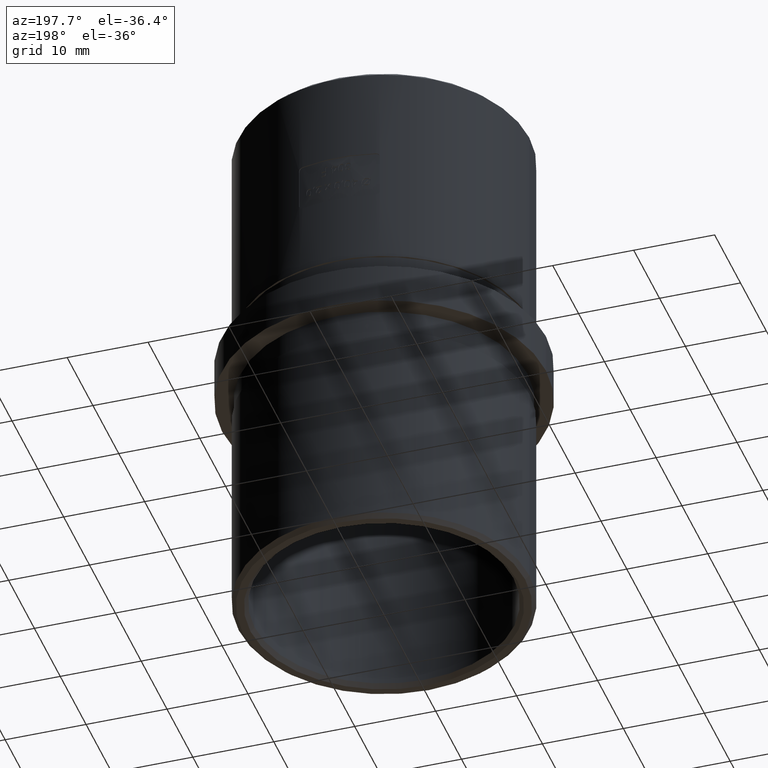
[diagram: clean part render]
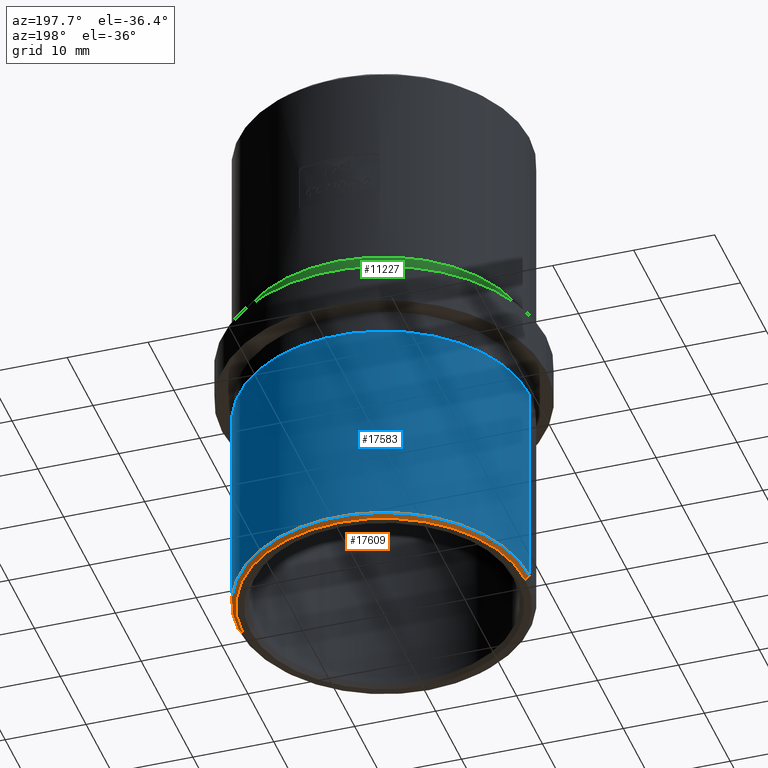
[diagram: same view with three faces highlighted in distinct colors, each labeled with its STEP entity id]
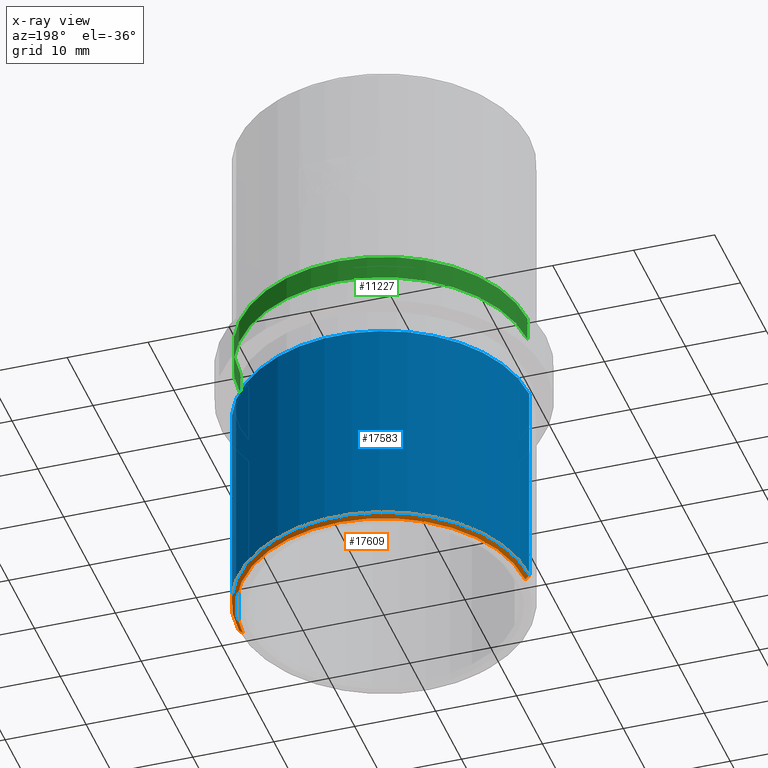
[diagram: x-ray of the same camera — body ghosted, the three highlighted faces saturated]
A machine part, auxiliary view with three faces highlighted in distinct colors.
The next image is the same camera in x-ray (body ghosted, the three faces saturated) — at least one of them is partly hidden behind the body in this view.
Their STEP definitions:

[orange] entity #17609 — the highlighted conical surface has half-angle 45 deg.
#169 = LINE ( 'NONE', #6822, #20080 ) ;
#220 = DIRECTION ( 'NONE',  ( 0.7071067811865426900, 0.0000000000000000000, 0.7071067811865524600 ) ) ;
#253 = CARTESIAN_POINT ( 'NONE',  ( 0.0000000000000000000, 0.0000000000000000000, -32.50000000000000000 ) ) ;
#1071 = VERTEX_POINT ( 'NONE', #15803 ) ;
#1219 = VERTEX_POINT ( 'NONE', #16545 ) ;
#1331 = CARTESIAN_POINT ( 'NONE',  ( 0.0000000000000000000, 0.0000000000000000000, -32.00000000000000000 ) ) ;
#1691 = ORIENTED_EDGE ( 'NONE', *, *, #21748, .F. ) ;
#4025 = VERTEX_POINT ( 'NONE', #6066 ) ;
#4634 = ORIENTED_EDGE ( 'NONE', *, *, #16833, .F. ) ;
#4849 = AXIS2_PLACEMENT_3D ( 'NONE', #6576, #6646, #15262 ) ;
#5349 = CONICAL_SURFACE ( 'NONE', #20091, 17.94999999999999900, 0.7853981633974415100 ) ;
#6066 = CARTESIAN_POINT ( 'NONE',  ( -17.45000000000000600, 2.167624834490815800E-015, -32.50000000000000000 ) ) ;
#6416 = EDGE_CURVE ( 'NONE', #4025, #10700, #169, .T. ) ;
#6576 = CARTESIAN_POINT ( 'NONE',  ( 0.0000000000000000000, 0.0000000000000000000, -32.00000000000000000 ) ) ;
#6646 = DIRECTION ( 'NONE',  ( -0.0000000000000000000, -0.0000000000000000000, 1.000000000000000000 ) ) ;
#6822 = CARTESIAN_POINT ( 'NONE',  ( -17.94999999999999900, 2.198241004469499100E-015, -32.00000000000000000 ) ) ;
#6875 = ORIENTED_EDGE ( 'NONE', *, *, #6416, .T. ) ;
#7486 = CIRCLE ( 'NONE', #4849, 17.94999999999999900 ) ;
#7546 = VECTOR ( 'NONE', #220, 1000.000000000000000 ) ;
#9858 = DIRECTION ( 'NONE',  ( -0.0000000000000000000, -0.0000000000000000000, 1.000000000000000000 ) ) ;
#10243 = DIRECTION ( 'NONE',  ( -0.7071067811865426900, 8.659560562354874900E-017, 0.7071067811865524600 ) ) ;
#10632 = DIRECTION ( 'NONE',  ( 0.0000000000000000000, 0.0000000000000000000, -1.000000000000000000 ) ) ;
#10700 = VERTEX_POINT ( 'NONE', #14364 ) ;
#13742 = CARTESIAN_POINT ( 'NONE',  ( 17.94999999999999900, 0.0000000000000000000, -32.00000000000000000 ) ) ;
#13882 = FACE_OUTER_BOUND ( 'NONE', #17209, .T. ) ;
#14364 = CARTESIAN_POINT ( 'NONE',  ( -17.94999999999999900, 0.0000000000000000000, -32.00000000000000000 ) ) ;
#15262 = DIRECTION ( 'NONE',  ( -1.000000000000000000, 0.0000000000000000000, 0.0000000000000000000 ) ) ;
#15680 = DIRECTION ( 'NONE',  ( -1.000000000000000000, 0.0000000000000000000, 0.0000000000000000000 ) ) ;
#15803 = CARTESIAN_POINT ( 'NONE',  ( 17.45000000000000600, 0.0000000000000000000, -32.50000000000000000 ) ) ;
#16197 = CIRCLE ( 'NONE', #21031, 17.45000000000000600 ) ;
#16545 = CARTESIAN_POINT ( 'NONE',  ( 17.94999999999999900, -2.198241004469499100E-015, -32.00000000000000000 ) ) ;
#16549 = DIRECTION ( 'NONE',  ( 1.000000000000000000, 0.0000000000000000000, 0.0000000000000000000 ) ) ;
#16833 = EDGE_CURVE ( 'NONE', #1071, #1219, #17155, .T. ) ;
#17084 = EDGE_CURVE ( 'NONE', #1219, #10700, #7486, .T. ) ;
#17155 = LINE ( 'NONE', #13742, #7546 ) ;
#17209 = EDGE_LOOP ( 'NONE', ( #1691, #6875, #21893, #4634 ) ) ;
#17609 = ADVANCED_FACE ( 'NONE', ( #13882 ), #5349, .T. ) ;
#20080 = VECTOR ( 'NONE', #10243, 1000.000000000000000 ) ;
#20091 = AXIS2_PLACEMENT_3D ( 'NONE', #1331, #9858, #16549 ) ;
#21031 = AXIS2_PLACEMENT_3D ( 'NONE', #253, #10632, #15680 ) ;
#21748 = EDGE_CURVE ( 'NONE', #4025, #1071, #16197, .T. ) ;
#21893 = ORIENTED_EDGE ( 'NONE', *, *, #17084, .F. ) ;

[blue] entity #17583 — the highlighted cylindrical surface (partial cylindrical patch) has radius 17.95 mm, axis along (-0, -0, 1).
#804 = CARTESIAN_POINT ( 'NONE',  ( 17.94999999999999900, -2.198241004469499100E-015, -5.500000000000000000 ) ) ;
#1096 = VERTEX_POINT ( 'NONE', #804 ) ;
#1219 = VERTEX_POINT ( 'NONE', #16545 ) ;
#1771 = CARTESIAN_POINT ( 'NONE',  ( -17.94999999999999900, 0.0000000000000000000, -32.50000000000000000 ) ) ;
#3154 = DIRECTION ( 'NONE',  ( -0.0000000000000000000, -0.0000000000000000000, 1.000000000000000000 ) ) ;
#4415 = CARTESIAN_POINT ( 'NONE',  ( 0.0000000000000000000, 0.0000000000000000000, -32.50000000000000000 ) ) ;
#4849 = AXIS2_PLACEMENT_3D ( 'NONE', #6576, #6646, #15262 ) ;
#5102 = DIRECTION ( 'NONE',  ( -0.0000000000000000000, -0.0000000000000000000, 1.000000000000000000 ) ) ;
#5694 = AXIS2_PLACEMENT_3D ( 'NONE', #4415, #12902, #16316 ) ;
#6092 = ORIENTED_EDGE ( 'NONE', *, *, #8030, .F. ) ;
#6576 = CARTESIAN_POINT ( 'NONE',  ( 0.0000000000000000000, 0.0000000000000000000, -32.00000000000000000 ) ) ;
#6646 = DIRECTION ( 'NONE',  ( -0.0000000000000000000, -0.0000000000000000000, 1.000000000000000000 ) ) ;
#7167 = AXIS2_PLACEMENT_3D ( 'NONE', #19016, #10697, #7282 ) ;
#7282 = DIRECTION ( 'NONE',  ( 1.000000000000000000, 0.0000000000000000000, 0.0000000000000000000 ) ) ;
#7486 = CIRCLE ( 'NONE', #4849, 17.94999999999999900 ) ;
#8030 = EDGE_CURVE ( 'NONE', #1096, #8881, #19220, .T. ) ;
#8881 = VERTEX_POINT ( 'NONE', #16162 ) ;
#10396 = EDGE_CURVE ( 'NONE', #1219, #1096, #14387, .T. ) ;
#10697 = DIRECTION ( 'NONE',  ( -0.0000000000000000000, -0.0000000000000000000, 1.000000000000000000 ) ) ;
#10700 = VERTEX_POINT ( 'NONE', #14364 ) ;
#10842 = EDGE_CURVE ( 'NONE', #10700, #8881, #14505, .T. ) ;
#11797 = ORIENTED_EDGE ( 'NONE', *, *, #10842, .T. ) ;
#12100 = CARTESIAN_POINT ( 'NONE',  ( 17.94999999999999900, -2.198241004469499100E-015, -32.50000000000000000 ) ) ;
#12272 = ORIENTED_EDGE ( 'NONE', *, *, #17084, .T. ) ;
#12273 = CYLINDRICAL_SURFACE ( 'NONE', #5694, 17.94999999999999900 ) ;
#12296 = FACE_OUTER_BOUND ( 'NONE', #18516, .T. ) ;
#12902 = DIRECTION ( 'NONE',  ( -0.0000000000000000000, -0.0000000000000000000, 1.000000000000000000 ) ) ;
#13198 = VECTOR ( 'NONE', #3154, 1000.000000000000000 ) ;
#14364 = CARTESIAN_POINT ( 'NONE',  ( -17.94999999999999900, 0.0000000000000000000, -32.00000000000000000 ) ) ;
#14387 = LINE ( 'NONE', #12100, #21067 ) ;
#14505 = LINE ( 'NONE', #1771, #13198 ) ;
#15262 = DIRECTION ( 'NONE',  ( -1.000000000000000000, 0.0000000000000000000, 0.0000000000000000000 ) ) ;
#16162 = CARTESIAN_POINT ( 'NONE',  ( -17.94999999999999900, 0.0000000000000000000, -5.500000000000000000 ) ) ;
#16316 = DIRECTION ( 'NONE',  ( -1.000000000000000000, 0.0000000000000000000, 0.0000000000000000000 ) ) ;
#16545 = CARTESIAN_POINT ( 'NONE',  ( 17.94999999999999900, -2.198241004469499100E-015, -32.00000000000000000 ) ) ;
#17084 = EDGE_CURVE ( 'NONE', #1219, #10700, #7486, .T. ) ;
#17583 = ADVANCED_FACE ( 'NONE', ( #12296 ), #12273, .T. ) ;
#18516 = EDGE_LOOP ( 'NONE', ( #18878, #12272, #11797, #6092 ) ) ;
#18878 = ORIENTED_EDGE ( 'NONE', *, *, #10396, .F. ) ;
#19016 = CARTESIAN_POINT ( 'NONE',  ( 0.0000000000000000000, 0.0000000000000000000, -5.500000000000000000 ) ) ;
#19220 = CIRCLE ( 'NONE', #7167, 17.94999999999999900 ) ;
#21067 = VECTOR ( 'NONE', #5102, 1000.000000000000000 ) ;

[green] entity #11227 — the highlighted cylindrical surface (partial cylindrical patch) has radius 17.75 mm, axis along (-0, -0, -1).
#394 = EDGE_CURVE ( 'NONE', #3828, #10120, #9189, .T. ) ;
#713 = FACE_OUTER_BOUND ( 'NONE', #10623, .T. ) ;
#1465 = CIRCLE ( 'NONE', #18503, 17.75000000000000400 ) ;
#1919 = AXIS2_PLACEMENT_3D ( 'NONE', #20712, #6803, #8731 ) ;
#2265 = CARTESIAN_POINT ( 'NONE',  ( -17.75000000000000400, 0.0000000000000000000, 5.500000000000000000 ) ) ;
#2679 = DIRECTION ( 'NONE',  ( -0.0000000000000000000, -0.0000000000000000000, -1.000000000000000000 ) ) ;
#2975 = VERTEX_POINT ( 'NONE', #3575 ) ;
#3226 = CARTESIAN_POINT ( 'NONE',  ( -17.75000000000000400, 0.0000000000000000000, 5.500000000000000000 ) ) ;
#3321 = LINE ( 'NONE', #18135, #12354 ) ;
#3575 = CARTESIAN_POINT ( 'NONE',  ( 17.75000000000000400, 2.173748068486552000E-015, 2.500000000000000000 ) ) ;
#3828 = VERTEX_POINT ( 'NONE', #14048 ) ;
#3836 = VECTOR ( 'NONE', #18680, 1000.000000000000000 ) ;
#4160 = CARTESIAN_POINT ( 'NONE',  ( -17.75000000000000400, 0.0000000000000000000, 2.500000000000000000 ) ) ;
#4527 = VERTEX_POINT ( 'NONE', #4160 ) ;
#6211 = AXIS2_PLACEMENT_3D ( 'NONE', #21989, #7163, #13793 ) ;
#6803 = DIRECTION ( 'NONE',  ( 0.0000000000000000000, 0.0000000000000000000, 1.000000000000000000 ) ) ;
#6914 = ORIENTED_EDGE ( 'NONE', *, *, #15300, .T. ) ;
#7163 = DIRECTION ( 'NONE',  ( -0.0000000000000000000, -0.0000000000000000000, -1.000000000000000000 ) ) ;
#8168 = CYLINDRICAL_SURFACE ( 'NONE', #6211, 17.75000000000000400 ) ;
#8497 = ORIENTED_EDGE ( 'NONE', *, *, #394, .F. ) ;
#8731 = DIRECTION ( 'NONE',  ( 1.000000000000000000, 0.0000000000000000000, 0.0000000000000000000 ) ) ;
#9189 = CIRCLE ( 'NONE', #1919, 17.75000000000000400 ) ;
#10120 = VERTEX_POINT ( 'NONE', #2265 ) ;
#10623 = EDGE_LOOP ( 'NONE', ( #8497, #19783, #6914, #16274 ) ) ;
#11227 = ADVANCED_FACE ( 'NONE', ( #713 ), #8168, .T. ) ;
#11956 = DIRECTION ( 'NONE',  ( 0.0000000000000000000, 0.0000000000000000000, 1.000000000000000000 ) ) ;
#12354 = VECTOR ( 'NONE', #2679, 1000.000000000000000 ) ;
#12876 = LINE ( 'NONE', #3226, #3836 ) ;
#13139 = EDGE_CURVE ( 'NONE', #3828, #2975, #3321, .T. ) ;
#13793 = DIRECTION ( 'NONE',  ( -1.000000000000000000, 0.0000000000000000000, 0.0000000000000000000 ) ) ;
#14048 = CARTESIAN_POINT ( 'NONE',  ( 17.75000000000000400, 2.173748068486552000E-015, 5.500000000000000000 ) ) ;
#14641 = EDGE_CURVE ( 'NONE', #10120, #4527, #12876, .T. ) ;
#15297 = DIRECTION ( 'NONE',  ( 1.000000000000000000, 0.0000000000000000000, 0.0000000000000000000 ) ) ;
#15300 = EDGE_CURVE ( 'NONE', #2975, #4527, #1465, .T. ) ;
#16274 = ORIENTED_EDGE ( 'NONE', *, *, #14641, .F. ) ;
#18135 = CARTESIAN_POINT ( 'NONE',  ( 17.75000000000000400, 2.173748068486552000E-015, 5.500000000000000000 ) ) ;
#18503 = AXIS2_PLACEMENT_3D ( 'NONE', #20437, #11956, #15297 ) ;
#18680 = DIRECTION ( 'NONE',  ( -0.0000000000000000000, -0.0000000000000000000, -1.000000000000000000 ) ) ;
#19783 = ORIENTED_EDGE ( 'NONE', *, *, #13139, .T. ) ;
#20437 = CARTESIAN_POINT ( 'NONE',  ( 0.0000000000000000000, 0.0000000000000000000, 2.500000000000000000 ) ) ;
#20712 = CARTESIAN_POINT ( 'NONE',  ( 0.0000000000000000000, 0.0000000000000000000, 5.500000000000000000 ) ) ;
#21989 = CARTESIAN_POINT ( 'NONE',  ( 0.0000000000000000000, 0.0000000000000000000, 5.500000000000000000 ) ) ;